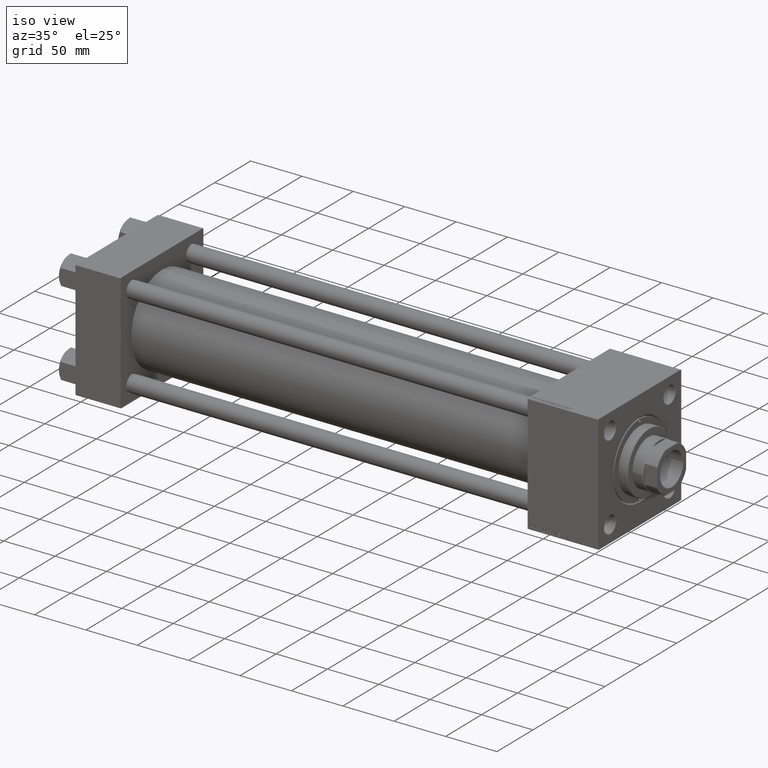
[diagram: clean part render]
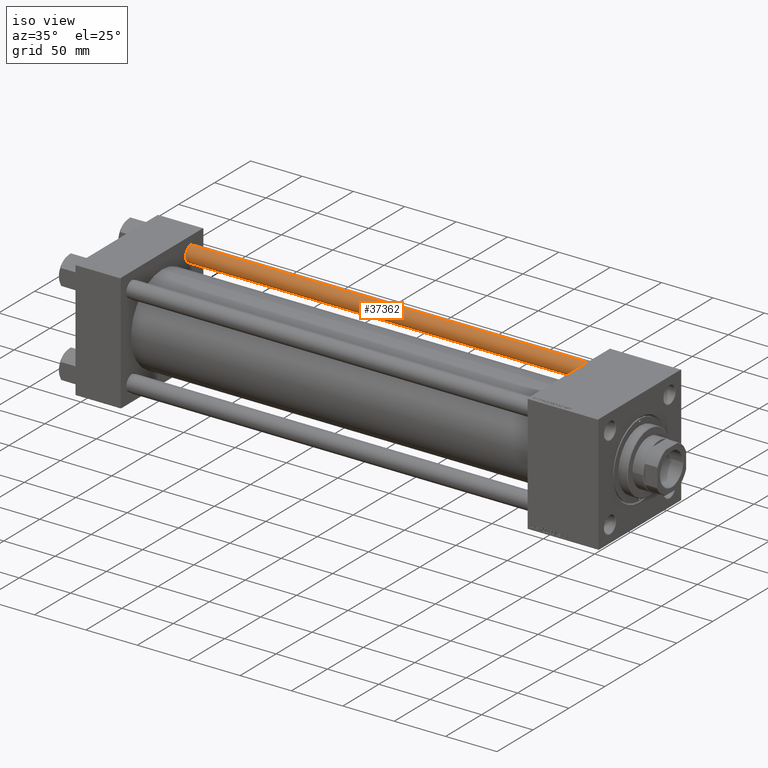
[diagram: same view with one face highlighted and labeled with its STEP entity id]
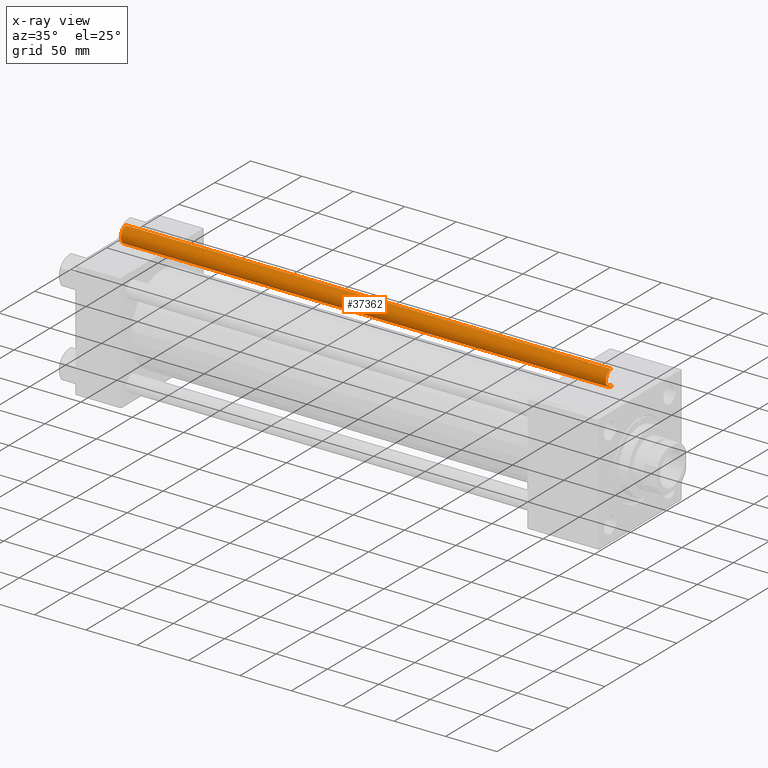
[diagram: x-ray of the same camera — body ghosted, the highlighted face saturated]
A machine part, iso view. The second image highlights one B-rep face of the part: STEP entity #37362.
The next image is the same camera in x-ray: the body ghosted, the highlighted face saturated — about 0% of this face is hidden behind the body in this view.
In plain terms, the highlighted cylindrical surface (edge-blend (fillet) strip) has radius 8 mm, axis along (-1, 0, 0).
Its self-contained STEP definition (entity closure, byte-faithful):
#179 = EDGE_CURVE ( 'NONE', #44173, #15629, #22773, .T. ) ;
#2635 = CARTESIAN_POINT ( 'NONE',  ( 0.000000000000000000, 0.000000000000000000, 473.0000000000000000 ) ) ;
#3524 = EDGE_CURVE ( 'NONE', #13962, #44581, #12815, .T. ) ;
#5852 = EDGE_CURVE ( 'NONE', #13962, #15629, #29433, .T. ) ;
#6001 = CARTESIAN_POINT ( 'NONE',  ( 8.000000000000000000, 9.797174393178823685E-16, 0.5000000000004445333 ) ) ;
#6907 = ORIENTED_EDGE ( 'NONE', *, *, #5852, .F. ) ;
#7746 = EDGE_LOOP ( 'NONE', ( #6907, #22934, #17520, #39226 ) ) ;
#8309 = DIRECTION ( 'NONE',  ( -0.000000000000000000, -0.000000000000000000, 1.000000000000000000 ) ) ;
#11762 = CYLINDRICAL_SURFACE ( 'NONE', #36820, 8.000000000000000000 ) ;
#12815 = CIRCLE ( 'NONE', #18673, 8.000000000000000000 ) ;
#13962 = VERTEX_POINT ( 'NONE', #15062 ) ;
#15062 = CARTESIAN_POINT ( 'NONE',  ( 8.000000000000000000, 9.797174393178823685E-16, 472.5000000000002274 ) ) ;
#15629 = VERTEX_POINT ( 'NONE', #6001 ) ;
#16090 = CARTESIAN_POINT ( 'NONE',  ( -8.000000000000000000, 0.000000000000000000, 473.0000000000000000 ) ) ;
#17520 = ORIENTED_EDGE ( 'NONE', *, *, #38127, .T. ) ;
#17867 = DIRECTION ( 'NONE',  ( -0.000000000000000000, -0.000000000000000000, -1.000000000000000000 ) ) ;
#18428 = DIRECTION ( 'NONE',  ( -1.000000000000000000, 0.000000000000000000, 0.000000000000000000 ) ) ;
#18673 = AXIS2_PLACEMENT_3D ( 'NONE', #22385, #19220, #38409 ) ;
#19220 = DIRECTION ( 'NONE',  ( 0.000000000000000000, 0.000000000000000000, -1.000000000000000000 ) ) ;
#19635 = DIRECTION ( 'NONE',  ( 1.000000000000000000, 0.000000000000000000, 0.000000000000000000 ) ) ;
#20287 = LINE ( 'NONE', #16090, #37639 ) ;
#22385 = CARTESIAN_POINT ( 'NONE',  ( 0.000000000000000000, 0.000000000000000000, 472.5000000000002274 ) ) ;
#22773 = CIRCLE ( 'NONE', #24442, 8.000000000000000000 ) ;
#22934 = ORIENTED_EDGE ( 'NONE', *, *, #3524, .T. ) ;
#23889 = CARTESIAN_POINT ( 'NONE',  ( -8.000000000000000000, 0.000000000000000000, 0.5000000000004445333 ) ) ;
#24442 = AXIS2_PLACEMENT_3D ( 'NONE', #36448, #8309, #19635 ) ;
#24638 = VECTOR ( 'NONE', #17867, 1000.000000000000000 ) ;
#26162 = CARTESIAN_POINT ( 'NONE',  ( -8.000000000000000000, 0.000000000000000000, 472.5000000000002274 ) ) ;
#29433 = LINE ( 'NONE', #33383, #24638 ) ;
#33383 = CARTESIAN_POINT ( 'NONE',  ( 8.000000000000000000, 9.797174393178823685E-16, 473.0000000000000000 ) ) ;
#36448 = CARTESIAN_POINT ( 'NONE',  ( 0.000000000000000000, 0.000000000000000000, 0.5000000000004445333 ) ) ;
#36820 = AXIS2_PLACEMENT_3D ( 'NONE', #2635, #39621, #18428 ) ;
#37362 = ADVANCED_FACE ( 'NONE', ( #42352 ), #11762, .T. ) ;
#37639 = VECTOR ( 'NONE', #48651, 1000.000000000000000 ) ;
#38127 = EDGE_CURVE ( 'NONE', #44581, #44173, #20287, .T. ) ;
#38409 = DIRECTION ( 'NONE',  ( 1.000000000000000000, 0.000000000000000000, 0.000000000000000000 ) ) ;
#39226 = ORIENTED_EDGE ( 'NONE', *, *, #179, .T. ) ;
#39621 = DIRECTION ( 'NONE',  ( -0.000000000000000000, -0.000000000000000000, -1.000000000000000000 ) ) ;
#42352 = FACE_OUTER_BOUND ( 'NONE', #7746, .T. ) ;
#44173 = VERTEX_POINT ( 'NONE', #23889 ) ;
#44581 = VERTEX_POINT ( 'NONE', #26162 ) ;
#48651 = DIRECTION ( 'NONE',  ( -0.000000000000000000, -0.000000000000000000, -1.000000000000000000 ) ) ;